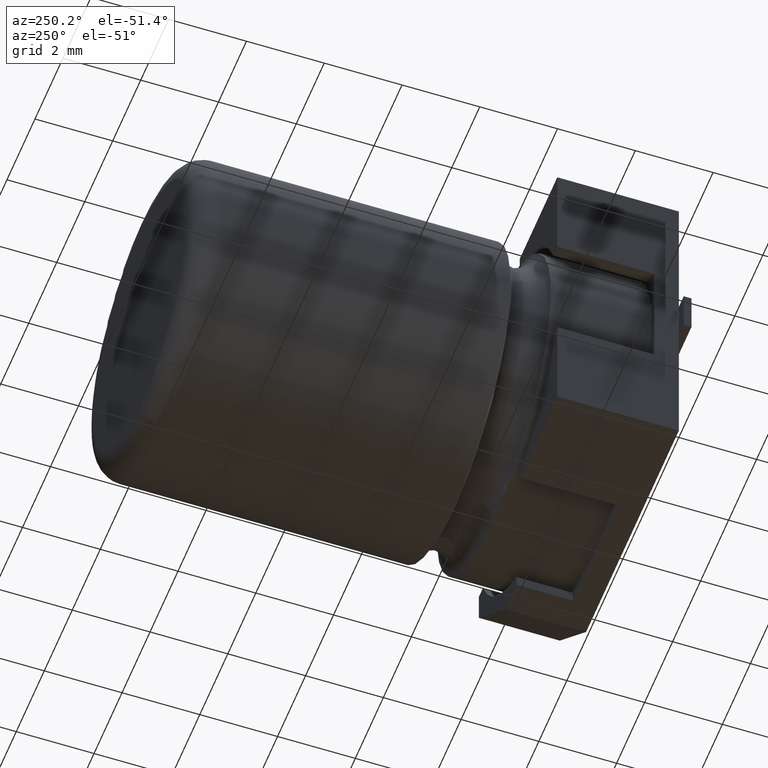
[diagram: clean part render]
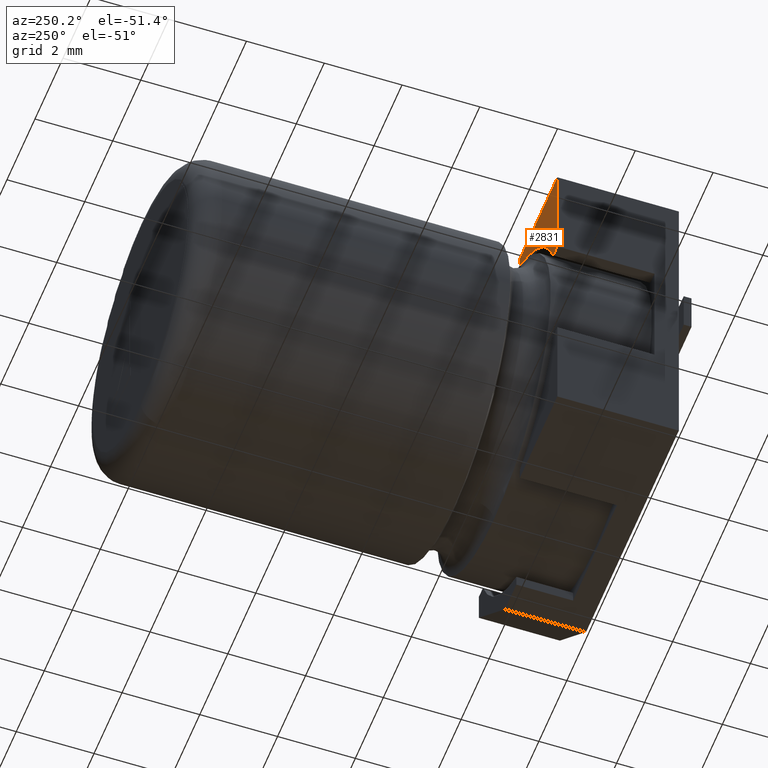
[diagram: same view with one face highlighted and labeled with its STEP entity id]
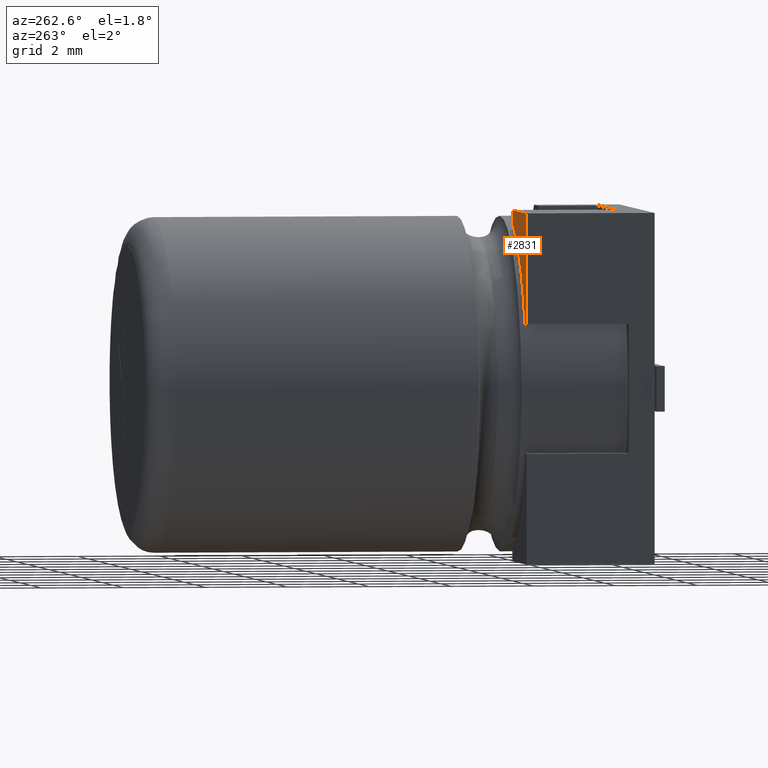
[diagram: same view with one face highlighted and labeled with its STEP entity id]
A machine part, auxiliary view. The second image highlights one B-rep face of the part: STEP entity #2831.
A second angle (auxiliary view) of the same face is appended — the face is thin or edge-on in the first view.
In plain terms, the highlighted planar face has unit normal (-0, 1, 0).
Its self-contained STEP definition (entity closure, byte-faithful):
#9 = CIRCLE ( 'NONE', #2815, 4.250000000000000000 ) ;
#56 = CARTESIAN_POINT ( 'NONE',  ( 0.2999999999999999334, 3.125000000000000000, -2.681561285864182853 ) ) ;
#163 = VERTEX_POINT ( 'NONE', #2951 ) ;
#180 = ORIENTED_EDGE ( 'NONE', *, *, #1526, .T. ) ;
#185 = FACE_OUTER_BOUND ( 'NONE', #862, .T. ) ;
#212 = VERTEX_POINT ( 'NONE', #56 ) ;
#256 = CARTESIAN_POINT ( 'NONE',  ( 4.249999999999998224, 3.125000000000000000, -4.250000000000000000 ) ) ;
#444 = AXIS2_PLACEMENT_3D ( 'NONE', #1179, #2204, #3295 ) ;
#456 = CARTESIAN_POINT ( 'NONE',  ( 2.681561285864189070, 3.125000000000000000, -0.2999999999999989342 ) ) ;
#544 = EDGE_CURVE ( 'NONE', #212, #2402, #9, .T. ) ;
#553 = VERTEX_POINT ( 'NONE', #2887 ) ;
#684 = VECTOR ( 'NONE', #771, 1000.000000000000000 ) ;
#710 = CARTESIAN_POINT ( 'NONE',  ( 0.000000000000000000, 3.125000000000000000, 0.000000000000000000 ) ) ;
#766 = LINE ( 'NONE', #1558, #3350 ) ;
#771 = DIRECTION ( 'NONE',  ( -1.000000000000000000, 0.000000000000000000, 0.000000000000000000 ) ) ;
#862 = EDGE_LOOP ( 'NONE', ( #927, #180, #2628, #2349, #2256 ) ) ;
#927 = ORIENTED_EDGE ( 'NONE', *, *, #544, .F. ) ;
#945 = DIRECTION ( 'NONE',  ( 1.000000000000000000, 0.000000000000000000, 0.000000000000000000 ) ) ;
#1124 = EDGE_CURVE ( 'NONE', #163, #553, #1187, .T. ) ;
#1179 = CARTESIAN_POINT ( 'NONE',  ( 0.000000000000000000, 3.125000000000000000, 0.000000000000000000 ) ) ;
#1187 = LINE ( 'NONE', #710, #2994 ) ;
#1526 = EDGE_CURVE ( 'NONE', #212, #553, #3119, .T. ) ;
#1547 = CARTESIAN_POINT ( 'NONE',  ( 0.000000000000000000, 3.125000000000000000, -2.681561285864182853 ) ) ;
#1558 = CARTESIAN_POINT ( 'NONE',  ( 2.681561285864189514, 3.125000000000000000, -3.876472762382636778E-15 ) ) ;
#2204 = DIRECTION ( 'NONE',  ( -0.000000000000000000, 1.000000000000000000, 0.000000000000000000 ) ) ;
#2217 = EDGE_CURVE ( 'NONE', #163, #3336, #2566, .T. ) ;
#2224 = EDGE_CURVE ( 'NONE', #2402, #3336, #766, .T. ) ;
#2256 = ORIENTED_EDGE ( 'NONE', *, *, #2224, .F. ) ;
#2317 = DIRECTION ( 'NONE',  ( 0.000000000000000000, 1.000000000000000000, -0.000000000000000000 ) ) ;
#2329 = DIRECTION ( 'NONE',  ( 1.445602896647339706E-15, 0.000000000000000000, 1.000000000000000000 ) ) ;
#2349 = ORIENTED_EDGE ( 'NONE', *, *, #2217, .T. ) ;
#2402 = VERTEX_POINT ( 'NONE', #456 ) ;
#2566 = LINE ( 'NONE', #3325, #3124 ) ;
#2628 = ORIENTED_EDGE ( 'NONE', *, *, #1124, .F. ) ;
#2815 = AXIS2_PLACEMENT_3D ( 'NONE', #256, #2317, #2871 ) ;
#2831 = ADVANCED_FACE ( 'NONE', ( #185 ), #3311, .T. ) ;
#2871 = DIRECTION ( 'NONE',  ( 0.000000000000000000, 0.000000000000000000, 1.000000000000000000 ) ) ;
#2887 = CARTESIAN_POINT ( 'NONE',  ( 0.000000000000000000, 3.125000000000000000, -2.681561285864182853 ) ) ;
#2951 = CARTESIAN_POINT ( 'NONE',  ( 0.000000000000000000, 3.125000000000000000, 0.000000000000000000 ) ) ;
#2994 = VECTOR ( 'NONE', #3303, 1000.000000000000000 ) ;
#3119 = LINE ( 'NONE', #1547, #684 ) ;
#3124 = VECTOR ( 'NONE', #945, 1000.000000000000000 ) ;
#3295 = DIRECTION ( 'NONE',  ( 0.000000000000000000, -0.000000000000000000, 1.000000000000000000 ) ) ;
#3303 = DIRECTION ( 'NONE',  ( 0.000000000000000000, 0.000000000000000000, -1.000000000000000000 ) ) ;
#3311 = PLANE ( 'NONE',  #444 ) ;
#3325 = CARTESIAN_POINT ( 'NONE',  ( 0.000000000000000000, 3.125000000000000000, 0.000000000000000000 ) ) ;
#3336 = VERTEX_POINT ( 'NONE', #3415 ) ;
#3350 = VECTOR ( 'NONE', #2329, 1000.000000000000000 ) ;
#3415 = CARTESIAN_POINT ( 'NONE',  ( 2.681561285864189070, 3.125000000000000000, 0.000000000000000000 ) ) ;